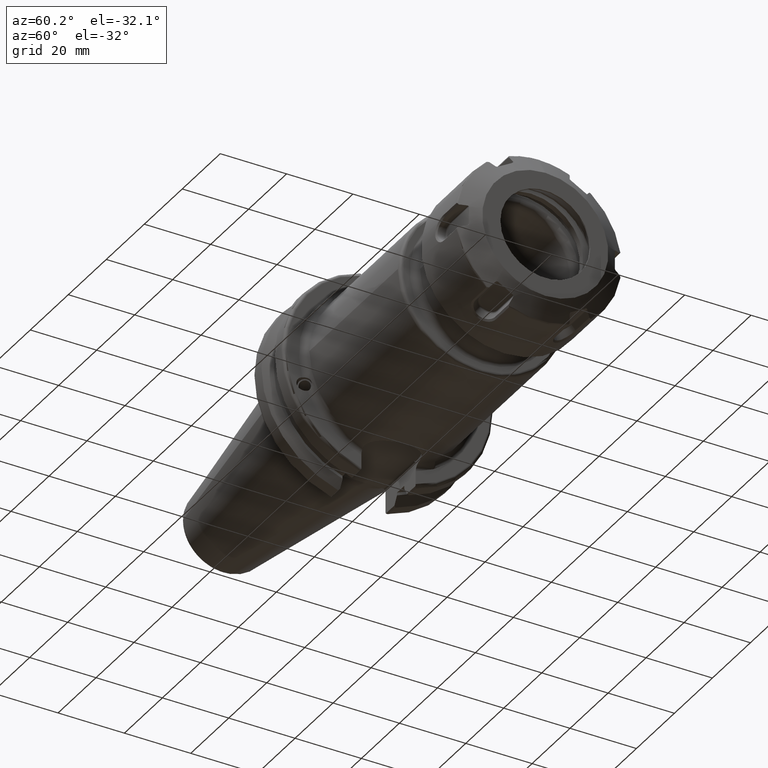
[diagram: clean part render]
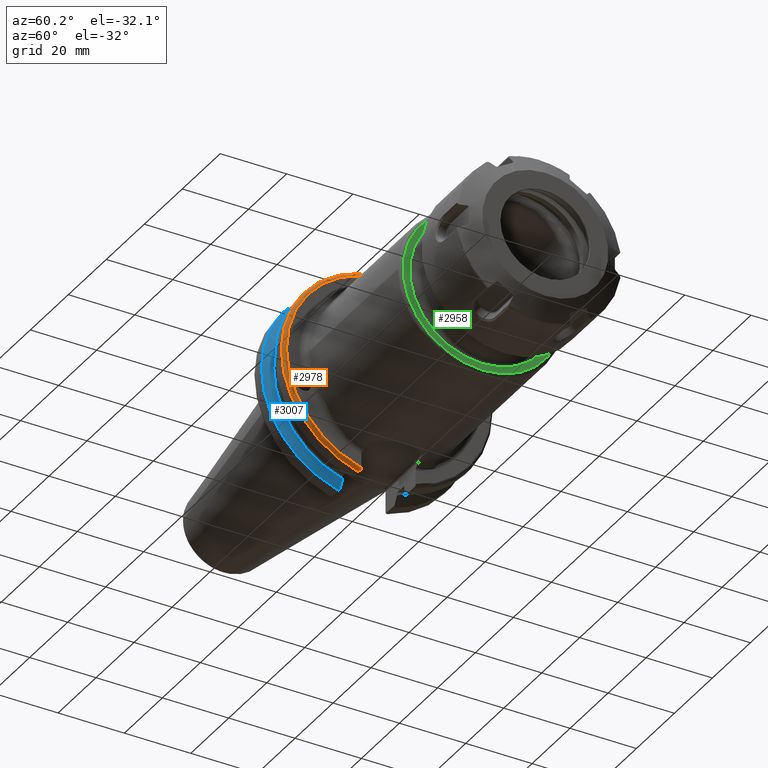
[diagram: same view with three faces highlighted in distinct colors, each labeled with its STEP entity id]
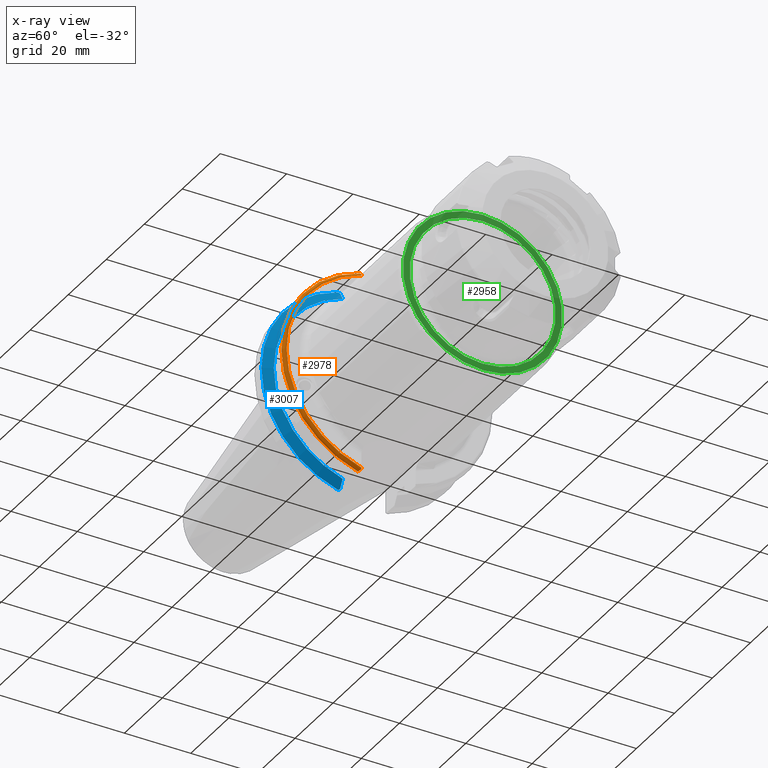
[diagram: x-ray of the same camera — body ghosted, the three highlighted faces saturated]
A machine part, auxiliary view with three faces highlighted in distinct colors.
The next image is the same camera in x-ray (body ghosted, the three faces saturated) — at least one of them is partly hidden behind the body in this view.
Their STEP definitions:

[orange] entity #2978 — the highlighted toroidal blend (fillet) surface has major radius 30.75 mm and minor (blend) radius 1 mm.
#146=TOROIDAL_SURFACE('',#3294,30.75,1.);
#194=B_SPLINE_CURVE_WITH_KNOTS('',3,(#5001,#5002,#5003,#5004,#5005,#5006),
 .UNSPECIFIED.,.F.,.F.,(4,2,4),(0.0977383630915687,0.112311108149119,0.150804350305566),
 .UNSPECIFIED.);
#195=B_SPLINE_CURVE_WITH_KNOTS('',3,(#5008,#5009,#5010,#5011,#5012,#5013),
 .UNSPECIFIED.,.F.,.F.,(4,2,4),(0.452741154494497,0.491581665024872,0.505824174364157),
 .UNSPECIFIED.);
#196=B_SPLINE_CURVE_WITH_KNOTS('',3,(#5015,#5016,#5017,#5018,#5019,#5020,
#5021,#5022),.UNSPECIFIED.,.F.,.F.,(4,2,2,4),(-0.104180282751876,-0.072978474246144,
-0.0343524753874979,0.),.UNSPECIFIED.);
#197=B_SPLINE_CURVE_WITH_KNOTS('',3,(#5025,#5026,#5027,#5028,#5029,#5030,
#5031,#5032),.UNSPECIFIED.,.F.,.F.,(4,2,2,4),(0.,0.0343524753874979,0.0729784742461441,
0.104180282751877),.UNSPECIFIED.);
#470=FACE_OUTER_BOUND('',#655,.T.);
#655=EDGE_LOOP('',(#2278,#2279,#2280,#2281,#2282,#2283));
#1151=CIRCLE('',#3218,30.75);
#1186=CIRCLE('',#3295,31.75);
#1302=VERTEX_POINT('',#4582);
#1303=VERTEX_POINT('',#4584);
#1383=VERTEX_POINT('',#5000);
#1384=VERTEX_POINT('',#5007);
#1385=VERTEX_POINT('',#5014);
#1386=VERTEX_POINT('',#5023);
#1605=EDGE_CURVE('',#1303,#1302,#1151,.T.);
#1716=EDGE_CURVE('',#1383,#1303,#194,.T.);
#1717=EDGE_CURVE('',#1302,#1384,#195,.T.);
#1718=EDGE_CURVE('',#1384,#1385,#196,.T.);
#1719=EDGE_CURVE('',#1385,#1386,#1186,.T.);
#1720=EDGE_CURVE('',#1386,#1383,#197,.T.);
#2278=ORIENTED_EDGE('',*,*,#1716,.T.);
#2279=ORIENTED_EDGE('',*,*,#1605,.T.);
#2280=ORIENTED_EDGE('',*,*,#1717,.T.);
#2281=ORIENTED_EDGE('',*,*,#1718,.T.);
#2282=ORIENTED_EDGE('',*,*,#1719,.T.);
#2283=ORIENTED_EDGE('',*,*,#1720,.T.);
#2978=ADVANCED_FACE('',(#470),#146,.T.);
#3218=AXIS2_PLACEMENT_3D('',#4585,#3593,#3594);
#3294=AXIS2_PLACEMENT_3D('',#4999,#3787,#3788);
#3295=AXIS2_PLACEMENT_3D('',#5024,#3789,#3790);
#3593=DIRECTION('center_axis',(-1.,0.,0.));
#3594=DIRECTION('ref_axis',(0.,-1.,1.60812264967664E-16));
#3787=DIRECTION('center_axis',(1.,0.,0.));
#3788=DIRECTION('ref_axis',(0.,0.,-1.));
#3789=DIRECTION('center_axis',(1.,0.,0.));
#3790=DIRECTION('ref_axis',(0.,-1.,1.60812264967664E-16));
#4582=CARTESIAN_POINT('',(19.05,-8.19,29.6392712461019));
#4584=CARTESIAN_POINT('',(19.05,-8.19,-29.6392712461019));
#4585=CARTESIAN_POINT('Origin',(19.05,0.,0.));
#4999=CARTESIAN_POINT('Origin',(18.05,0.,0.));
#5000=CARTESIAN_POINT('',(18.9058722749097,-8.19,-30.1755016258903));
#5001=CARTESIAN_POINT('Ctrl Pts',(18.9058722749097,-8.19,-30.1755016258903));
#5002=CARTESIAN_POINT('Ctrl Pts',(18.9324477233044,-8.19,-30.1299319366157));
#5003=CARTESIAN_POINT('Ctrl Pts',(18.9550700364447,-8.19,-30.0829389905409));
#5004=CARTESIAN_POINT('Ctrl Pts',(19.0210043632013,-8.19,-29.9188002007263));
#5005=CARTESIAN_POINT('Ctrl Pts',(19.05,-8.19,-29.76758205329));
#5006=CARTESIAN_POINT('Ctrl Pts',(19.05,-8.19,-29.6392712461019));
#5007=CARTESIAN_POINT('',(18.9058722749097,-8.19,30.1755016258903));
#5008=CARTESIAN_POINT('Ctrl Pts',(19.05,-8.19,29.6392712461019));
#5009=CARTESIAN_POINT('Ctrl Pts',(19.05,-8.19,29.7687396145364));
#5010=CARTESIAN_POINT('Ctrl Pts',(19.0204855670831,-8.19,29.9212724384851));
#5011=CARTESIAN_POINT('Ctrl Pts',(18.9539643471756,-8.19,30.0852355256475));
#5012=CARTESIAN_POINT('Ctrl Pts',(18.9318163728133,-8.19,30.131014531546));
#5013=CARTESIAN_POINT('Ctrl Pts',(18.9058722749097,-8.19,30.1755016258903));
#5014=CARTESIAN_POINT('',(18.05,-8.67204822802685,30.5427254764662));
#5015=CARTESIAN_POINT('Ctrl Pts',(18.9058722749097,-8.19,30.1755016258903));
#5016=CARTESIAN_POINT('Ctrl Pts',(18.8574463042989,-8.2703682833078,30.2367261024977));
#5017=CARTESIAN_POINT('Ctrl Pts',(18.7926702662319,-8.34909446036477,30.2966996242308));
#5018=CARTESIAN_POINT('Ctrl Pts',(18.6396724190507,-8.48862804755883,30.4029961692546));
#5019=CARTESIAN_POINT('Ctrl Pts',(18.5184414294771,-8.56482138642532,30.4610401774263));
#5020=CARTESIAN_POINT('Ctrl Pts',(18.2983170433775,-8.6471881193939,30.5237870709558));
#5021=CARTESIAN_POINT('Ctrl Pts',(18.1645082512917,-8.67204822802685,30.5427254764662));
#5022=CARTESIAN_POINT('Ctrl Pts',(18.05,-8.67204822802685,30.5427254764662));
#5023=CARTESIAN_POINT('',(18.05,-8.67204822802685,-30.5427254764662));
#5024=CARTESIAN_POINT('Origin',(18.05,0.,0.));
#5025=CARTESIAN_POINT('Ctrl Pts',(18.05,-8.67204822802686,-30.5427254764662));
#5026=CARTESIAN_POINT('Ctrl Pts',(18.1645082512917,-8.67204822802686,-30.5427254764662));
#5027=CARTESIAN_POINT('Ctrl Pts',(18.2983170433775,-8.6471881193939,-30.5237870709558));
#5028=CARTESIAN_POINT('Ctrl Pts',(18.5184414294771,-8.56482138642532,-30.4610401774263));
#5029=CARTESIAN_POINT('Ctrl Pts',(18.6396724190507,-8.48862804755884,-30.4029961692546));
#5030=CARTESIAN_POINT('Ctrl Pts',(18.7926702662319,-8.34909446036477,-30.2966996242308));
#5031=CARTESIAN_POINT('Ctrl Pts',(18.8574463042989,-8.27036828330781,-30.2367261024977));
#5032=CARTESIAN_POINT('Ctrl Pts',(18.9058722749097,-8.19,-30.1755016258903));

[blue] entity #3007 — the highlighted conical surface has half-angle 60 deg.
#120=(
BOUNDED_CURVE()
B_SPLINE_CURVE(2,(#5045,#5046,#5047),.UNSPECIFIED.,.F.,.F.)
B_SPLINE_CURVE_WITH_KNOTS((3,3),(0.,0.276549142796606),.UNSPECIFIED.)
CURVE()
GEOMETRIC_REPRESENTATION_ITEM()
RATIONAL_B_SPLINE_CURVE((1.,1.00095203903674,1.00031614444931))
REPRESENTATION_ITEM('')
);
#123=(
BOUNDED_CURVE()
B_SPLINE_CURVE(2,(#5073,#5074,#5075),.UNSPECIFIED.,.F.,.F.)
B_SPLINE_CURVE_WITH_KNOTS((3,3),(0.0550586467396013,0.331607789535851),
 .UNSPECIFIED.)
CURVE()
GEOMETRIC_REPRESENTATION_ITEM()
RATIONAL_B_SPLINE_CURVE((1.00031614445107,1.00095203904202,1.))
REPRESENTATION_ITEM('')
);
#124=(
BOUNDED_CURVE()
B_SPLINE_CURVE(2,(#5109,#5110,#5111),.UNSPECIFIED.,.F.,.F.)
B_SPLINE_CURVE_WITH_KNOTS((3,3),(0.,0.0639048713675736),.UNSPECIFIED.)
CURVE()
GEOMETRIC_REPRESENTATION_ITEM()
RATIONAL_B_SPLINE_CURVE((1.,1.00028444218293,1.00047644010591))
REPRESENTATION_ITEM('')
);
#125=(
BOUNDED_CURVE()
B_SPLINE_CURVE(2,(#5117,#5118,#5119),.UNSPECIFIED.,.F.,.F.)
B_SPLINE_CURVE_WITH_KNOTS((3,3),(0.329353533631217,0.393258405001025),
 .UNSPECIFIED.)
CURVE()
GEOMETRIC_REPRESENTATION_ITEM()
RATIONAL_B_SPLINE_CURVE((1.00047644010584,1.0002844421829,1.))
REPRESENTATION_ITEM('')
);
#499=FACE_OUTER_BOUND('',#685,.T.);
#685=EDGE_LOOP('',(#2437,#2438,#2439,#2440,#2441,#2442));
#1188=CIRCLE('',#3302,31.75);
#1203=CIRCLE('',#3341,28.9593772964944);
#1388=VERTEX_POINT('',#5042);
#1389=VERTEX_POINT('',#5044);
#1398=VERTEX_POINT('',#5070);
#1399=VERTEX_POINT('',#5072);
#1403=VERTEX_POINT('',#5107);
#1404=VERTEX_POINT('',#5113);
#1724=EDGE_CURVE('',#1389,#1388,#120,.T.);
#1735=EDGE_CURVE('',#1399,#1398,#123,.T.);
#1744=EDGE_CURVE('',#1403,#1388,#124,.T.);
#1746=EDGE_CURVE('',#1403,#1404,#1188,.T.);
#1747=EDGE_CURVE('',#1399,#1404,#125,.T.);
#1790=EDGE_CURVE('',#1389,#1398,#1203,.T.);
#2437=ORIENTED_EDGE('',*,*,#1747,.F.);
#2438=ORIENTED_EDGE('',*,*,#1735,.T.);
#2439=ORIENTED_EDGE('',*,*,#1790,.F.);
#2440=ORIENTED_EDGE('',*,*,#1724,.T.);
#2441=ORIENTED_EDGE('',*,*,#1744,.F.);
#2442=ORIENTED_EDGE('',*,*,#1746,.T.);
#2918=CONICAL_SURFACE('',#3340,30.3546886482472,1.0471975511966);
#3007=ADVANCED_FACE('',(#499),#2918,.T.);
#3302=AXIS2_PLACEMENT_3D('',#5115,#3818,#3819);
#3340=AXIS2_PLACEMENT_3D('',#5239,#3912,#3913);
#3341=AXIS2_PLACEMENT_3D('',#5240,#3914,#3915);
#3818=DIRECTION('center_axis',(1.,0.,0.));
#3819=DIRECTION('ref_axis',(0.,0.,-1.));
#3912=DIRECTION('center_axis',(-1.,0.,0.));
#3913=DIRECTION('ref_axis',(0.,-1.,-1.22464679914735E-16));
#3914=DIRECTION('center_axis',(1.,0.,0.));
#3915=DIRECTION('ref_axis',(0.,0.,-1.));
#5042=CARTESIAN_POINT('',(7.87958530351256,-8.19,30.1755016258903));
#5044=CARTESIAN_POINT('',(9.212,-8.19,27.7771386827498));
#5045=CARTESIAN_POINT('Ctrl Pts',(9.212,-8.19,27.7771386827498));
#5046=CARTESIAN_POINT('Ctrl Pts',(8.57336356152746,-8.19,28.9303689539641));
#5047=CARTESIAN_POINT('Ctrl Pts',(7.87958530351256,-8.19,30.1755016258903));
#5070=CARTESIAN_POINT('',(9.212,-8.19,-27.7771386827498));
#5072=CARTESIAN_POINT('',(7.87958530351256,-8.19,-30.1755016258903));
#5073=CARTESIAN_POINT('Ctrl Pts',(7.87958530351256,-8.19,-30.1755016258903));
#5074=CARTESIAN_POINT('Ctrl Pts',(8.57336356151926,-8.19,-28.9303689539789));
#5075=CARTESIAN_POINT('Ctrl Pts',(9.212,-8.19,-27.7771386827498));
#5107=CARTESIAN_POINT('',(7.60083323092435,-8.67204822802685,30.5427254764662));
#5109=CARTESIAN_POINT('Ctrl Pts',(7.60083323092435,-8.67204822802686,30.5427254764662));
#5110=CARTESIAN_POINT('Ctrl Pts',(7.74189148121629,-8.42917748262642,30.3577067892629));
#5111=CARTESIAN_POINT('Ctrl Pts',(7.87958530351256,-8.19,30.1755016258903));
#5113=CARTESIAN_POINT('',(7.60083323092435,-8.67204822802685,-30.5427254764662));
#5115=CARTESIAN_POINT('Origin',(7.60083323092435,0.,0.));
#5117=CARTESIAN_POINT('Ctrl Pts',(7.87958530351256,-8.19,-30.1755016258903));
#5118=CARTESIAN_POINT('Ctrl Pts',(7.7418914812116,-8.42917748263464,-30.3577067892692));
#5119=CARTESIAN_POINT('Ctrl Pts',(7.60083323092435,-8.67204822802687,-30.5427254764662));
#5239=CARTESIAN_POINT('Origin',(8.40641661546218,0.,0.));
#5240=CARTESIAN_POINT('Origin',(9.212,0.,0.));

[green] entity #2958 — the highlighted planar face has unit normal (1, 0, 0).
#337=FACE_BOUND('',#628,.T.);
#360=PLANE('',#3254);
#450=FACE_OUTER_BOUND('',#627,.T.);
#627=EDGE_LOOP('',(#2167));
#628=EDGE_LOOP('',(#2168));
#1165=CIRCLE('',#3252,24.);
#1167=CIRCLE('',#3255,22.);
#1336=VERTEX_POINT('',#4834);
#1337=VERTEX_POINT('',#4838);
#1653=EDGE_CURVE('',#1336,#1336,#1165,.T.);
#1655=EDGE_CURVE('',#1337,#1337,#1167,.T.);
#2167=ORIENTED_EDGE('',*,*,#1653,.F.);
#2168=ORIENTED_EDGE('',*,*,#1655,.F.);
#2958=ADVANCED_FACE('',(#450,#337),#360,.T.);
#3252=AXIS2_PLACEMENT_3D('',#4835,#3670,#3671);
#3254=AXIS2_PLACEMENT_3D('',#4837,#3674,#3675);
#3255=AXIS2_PLACEMENT_3D('',#4839,#3676,#3677);
#3670=DIRECTION('center_axis',(-1.,0.,0.));
#3671=DIRECTION('ref_axis',(0.,-1.,1.83697019872103E-16));
#3674=DIRECTION('center_axis',(1.,0.,0.));
#3675=DIRECTION('ref_axis',(0.,0.,-1.));
#3676=DIRECTION('center_axis',(1.,0.,0.));
#3677=DIRECTION('ref_axis',(0.,-1.,1.83697019872103E-16));
#4834=CARTESIAN_POINT('',(68.6,-2.93915231795365E-15,24.));
#4835=CARTESIAN_POINT('Origin',(68.6,0.,0.));
#4837=CARTESIAN_POINT('Origin',(68.6,20.,0.));
#4838=CARTESIAN_POINT('',(68.6,-2.69422295812418E-15,22.));
#4839=CARTESIAN_POINT('Origin',(68.6,0.,0.));